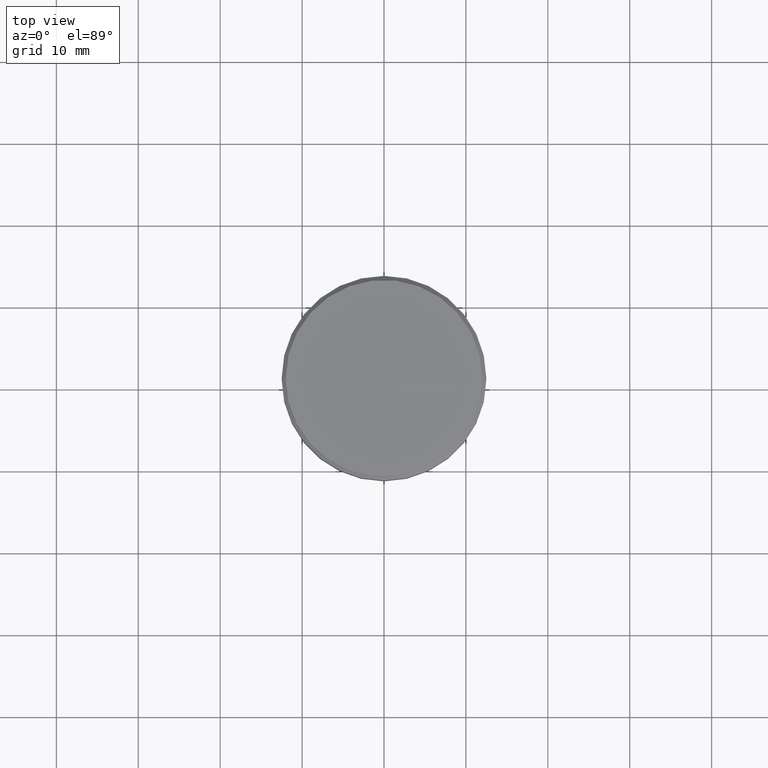
[diagram: clean part render]
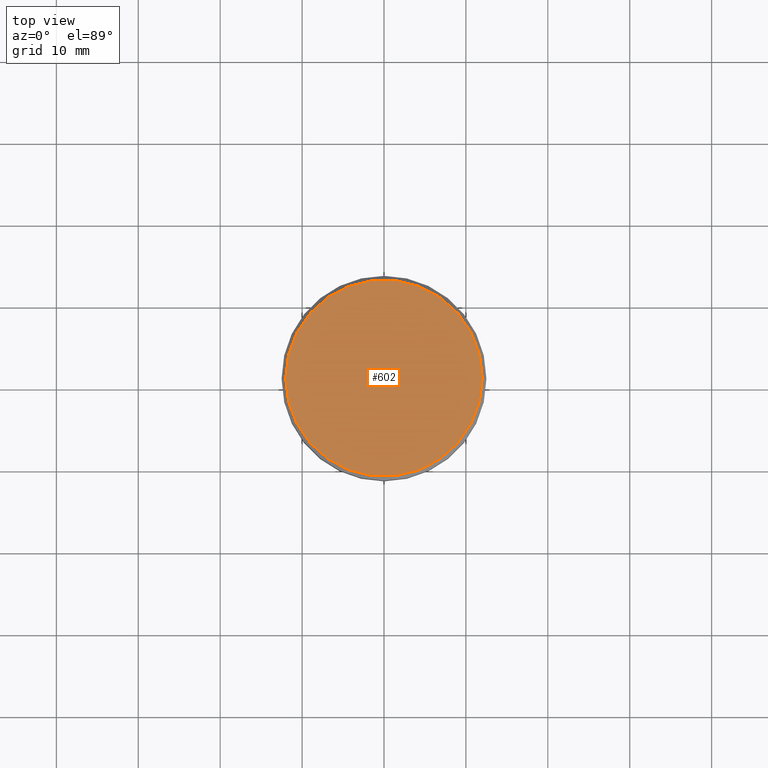
[diagram: same view with one face highlighted and labeled with its STEP entity id]
A machine part, top view. The second image highlights one B-rep face of the part: STEP entity #602.
In plain terms, the highlighted planar face has unit normal (0, -0, 1).
Its self-contained STEP definition (entity closure, byte-faithful):
#62 = DIRECTION ( 'NONE',  ( 1.000000000000000000, 0.000000000000000000, 0.000000000000000000 ) ) ;
#120 = DIRECTION ( 'NONE',  ( 1.000000000000000000, 0.000000000000000000, 0.000000000000000000 ) ) ;
#125 = CARTESIAN_POINT ( 'NONE',  ( -12.00000000000001066, 0.000000000000000000, 0.000000000000000000 ) ) ;
#190 = EDGE_LOOP ( 'NONE', ( #868, #894 ) ) ;
#198 = CIRCLE ( 'NONE', #870, 12.00000000000001066 ) ;
#230 = EDGE_CURVE ( 'NONE', #429, #531, #198, .T. ) ;
#344 = DIRECTION ( 'NONE',  ( -0.000000000000000000, -0.000000000000000000, 1.000000000000000000 ) ) ;
#429 = VERTEX_POINT ( 'NONE', #1091 ) ;
#505 = DIRECTION ( 'NONE',  ( -0.000000000000000000, -0.000000000000000000, 1.000000000000000000 ) ) ;
#531 = VERTEX_POINT ( 'NONE', #125 ) ;
#575 = AXIS2_PLACEMENT_3D ( 'NONE', #660, #505, #62 ) ;
#587 = CARTESIAN_POINT ( 'NONE',  ( 0.000000000000000000, 0.000000000000000000, 0.000000000000000000 ) ) ;
#602 = ADVANCED_FACE ( 'NONE', ( #753 ), #661, .T. ) ;
#627 = AXIS2_PLACEMENT_3D ( 'NONE', #925, #1024, #120 ) ;
#660 = CARTESIAN_POINT ( 'NONE',  ( 0.000000000000000000, 0.000000000000000000, 0.000000000000000000 ) ) ;
#661 = PLANE ( 'NONE',  #627 ) ;
#753 = FACE_OUTER_BOUND ( 'NONE', #190, .T. ) ;
#868 = ORIENTED_EDGE ( 'NONE', *, *, #992, .T. ) ;
#870 = AXIS2_PLACEMENT_3D ( 'NONE', #587, #344, #1147 ) ;
#894 = ORIENTED_EDGE ( 'NONE', *, *, #230, .T. ) ;
#925 = CARTESIAN_POINT ( 'NONE',  ( 0.000000000000000000, 0.000000000000000000, 0.000000000000000000 ) ) ;
#992 = EDGE_CURVE ( 'NONE', #531, #429, #1016, .T. ) ;
#1016 = CIRCLE ( 'NONE', #575, 12.00000000000001066 ) ;
#1024 = DIRECTION ( 'NONE',  ( 0.000000000000000000, -0.000000000000000000, 1.000000000000000000 ) ) ;
#1091 = CARTESIAN_POINT ( 'NONE',  ( 12.00000000000001066, 1.500192328955508326E-15, 0.000000000000000000 ) ) ;
#1147 = DIRECTION ( 'NONE',  ( 1.000000000000000000, 0.000000000000000000, 0.000000000000000000 ) ) ;